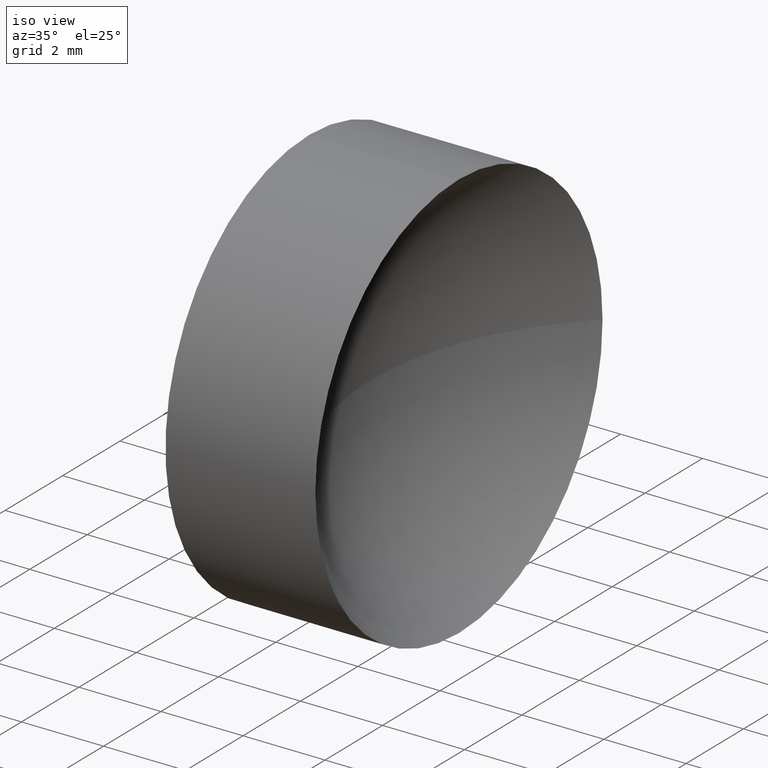
[diagram: clean part render]
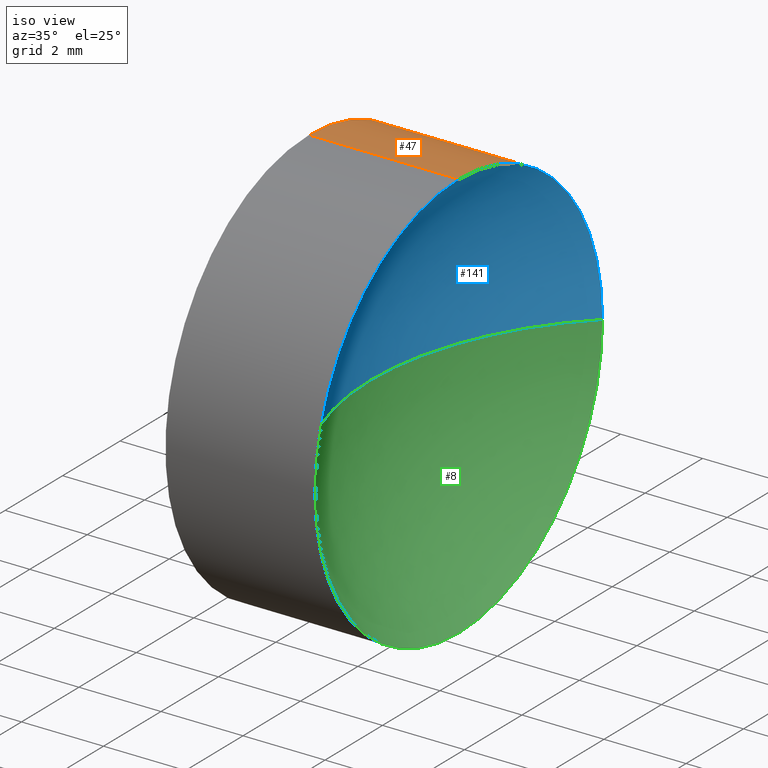
[diagram: same view with three faces highlighted in distinct colors, each labeled with its STEP entity id]
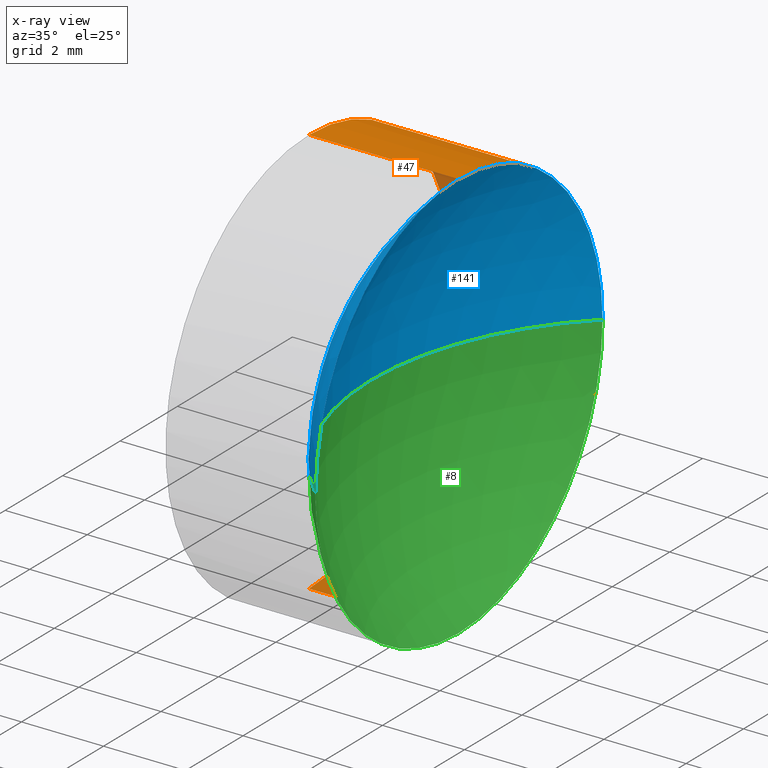
[diagram: x-ray of the same camera — body ghosted, the three highlighted faces saturated]
A machine part, iso view with three faces highlighted in distinct colors.
The next image is the same camera in x-ray (body ghosted, the three faces saturated) — at least one of them is partly hidden behind the body in this view.
Their STEP definitions:

[orange] entity #47 — the highlighted cylindrical surface (partial cylindrical patch) has radius 5 mm, axis along (-1, -0, -0).
#1 = CIRCLE ( 'NONE', #100, 4.999999999999997300 ) ;
#4 = EDGE_CURVE ( 'NONE', #163, #142, #1, .T. ) ;
#6 = CARTESIAN_POINT ( 'NONE',  ( 41.36582732549757700, 26.06225218280608000, -4.999999999999997300 ) ) ;
#9 = ORIENTED_EDGE ( 'NONE', *, *, #165, .F. ) ;
#12 = ORIENTED_EDGE ( 'NONE', *, *, #131, .T. ) ;
#19 = DIRECTION ( 'NONE',  ( 0.0000000000000000000, 0.0000000000000000000, 1.000000000000000000 ) ) ;
#21 = DIRECTION ( 'NONE',  ( 0.0000000000000000000, 0.0000000000000000000, 1.000000000000000000 ) ) ;
#28 = CYLINDRICAL_SURFACE ( 'NONE', #132, 4.999999999999997300 ) ;
#29 = EDGE_CURVE ( 'NONE', #142, #53, #170, .T. ) ;
#30 = ORIENTED_EDGE ( 'NONE', *, *, #29, .T. ) ;
#32 = DIRECTION ( 'NONE',  ( -1.000000000000000000, -0.0000000000000000000, -0.0000000000000000000 ) ) ;
#35 = DIRECTION ( 'NONE',  ( -1.000000000000000000, -0.0000000000000000000, -0.0000000000000000000 ) ) ;
#40 = CARTESIAN_POINT ( 'NONE',  ( 45.01989884529392300, 26.06225218280608000, 0.0000000000000000000 ) ) ;
#42 = EDGE_LOOP ( 'NONE', ( #30, #12, #186, #9, #99 ) ) ;
#45 = CARTESIAN_POINT ( 'NONE',  ( 39.73650001336414300, 26.06225218280608000, -4.999999999999997300 ) ) ;
#46 = DIRECTION ( 'NONE',  ( -1.000000000000000000, -0.0000000000000000000, -0.0000000000000000000 ) ) ;
#47 = ADVANCED_FACE ( 'NONE', ( #144 ), #28, .T. ) ;
#53 = VERTEX_POINT ( 'NONE', #169 ) ;
#54 = DIRECTION ( 'NONE',  ( 0.0000000000000000000, 0.0000000000000000000, 1.000000000000000000 ) ) ;
#62 = CARTESIAN_POINT ( 'NONE',  ( 45.01989884529392300, 31.06225218280608000, 6.123233995736761400E-016 ) ) ;
#88 = VERTEX_POINT ( 'NONE', #173 ) ;
#89 = EDGE_CURVE ( 'NONE', #88, #136, #164, .T. ) ;
#90 = DIRECTION ( 'NONE',  ( 0.0000000000000000000, 0.0000000000000000000, 1.000000000000000000 ) ) ;
#95 = CARTESIAN_POINT ( 'NONE',  ( 45.01989884529392300, 26.06225218280608000, 4.999999999999997300 ) ) ;
#99 = ORIENTED_EDGE ( 'NONE', *, *, #4, .T. ) ;
#100 = AXIS2_PLACEMENT_3D ( 'NONE', #40, #149, #54 ) ;
#102 = LINE ( 'NONE', #114, #118 ) ;
#106 = CARTESIAN_POINT ( 'NONE',  ( 41.36582732549757700, 26.06225218280608000, 0.0000000000000000000 ) ) ;
#114 = CARTESIAN_POINT ( 'NONE',  ( 39.73650001336414300, 26.06225218280608000, 4.999999999999997300 ) ) ;
#116 = LINE ( 'NONE', #45, #171 ) ;
#118 = VECTOR ( 'NONE', #35, 1000.000000000000000 ) ;
#128 = AXIS2_PLACEMENT_3D ( 'NONE', #153, #46, #90 ) ;
#131 = EDGE_CURVE ( 'NONE', #53, #136, #116, .T. ) ;
#132 = AXIS2_PLACEMENT_3D ( 'NONE', #166, #133, #19 ) ;
#133 = DIRECTION ( 'NONE',  ( -1.000000000000000000, -0.0000000000000000000, -0.0000000000000000000 ) ) ;
#136 = VERTEX_POINT ( 'NONE', #6 ) ;
#142 = VERTEX_POINT ( 'NONE', #62 ) ;
#144 = FACE_OUTER_BOUND ( 'NONE', #42, .T. ) ;
#149 = DIRECTION ( 'NONE',  ( -1.000000000000000000, -0.0000000000000000000, -0.0000000000000000000 ) ) ;
#153 = CARTESIAN_POINT ( 'NONE',  ( 45.01989884529392300, 26.06225218280608000, 0.0000000000000000000 ) ) ;
#157 = AXIS2_PLACEMENT_3D ( 'NONE', #106, #32, #21 ) ;
#158 = DIRECTION ( 'NONE',  ( -1.000000000000000000, -0.0000000000000000000, -0.0000000000000000000 ) ) ;
#163 = VERTEX_POINT ( 'NONE', #95 ) ;
#164 = CIRCLE ( 'NONE', #157, 4.999999999999997300 ) ;
#165 = EDGE_CURVE ( 'NONE', #163, #88, #102, .T. ) ;
#166 = CARTESIAN_POINT ( 'NONE',  ( 39.73650001336414300, 26.06225218280608000, 0.0000000000000000000 ) ) ;
#169 = CARTESIAN_POINT ( 'NONE',  ( 45.01989884529392300, 26.06225218280608000, -4.999999999999997300 ) ) ;
#170 = CIRCLE ( 'NONE', #128, 4.999999999999997300 ) ;
#171 = VECTOR ( 'NONE', #158, 1000.000000000000000 ) ;
#173 = CARTESIAN_POINT ( 'NONE',  ( 41.36582732549757700, 26.06225218280608000, 4.999999999999997300 ) ) ;
#186 = ORIENTED_EDGE ( 'NONE', *, *, #89, .F. ) ;

[blue] entity #141 — the highlighted spherical surface has radius 6.88 mm.
#1 = CIRCLE ( 'NONE', #100, 4.999999999999997300 ) ;
#4 = EDGE_CURVE ( 'NONE', #163, #142, #1, .T. ) ;
#5 = DIRECTION ( 'NONE',  ( 0.0000000000000000000, -1.224646799147353200E-016, 1.000000000000000000 ) ) ;
#18 = FACE_OUTER_BOUND ( 'NONE', #74, .T. ) ;
#22 = CARTESIAN_POINT ( 'NONE',  ( 45.01989884529392300, 21.06225218280608800, 0.0000000000000000000 ) ) ;
#24 = ORIENTED_EDGE ( 'NONE', *, *, #86, .T. ) ;
#34 = CIRCLE ( 'NONE', #57, 6.879999999999997200 ) ;
#40 = CARTESIAN_POINT ( 'NONE',  ( 45.01989884529392300, 26.06225218280608000, 0.0000000000000000000 ) ) ;
#48 = DIRECTION ( 'NONE',  ( -1.000000000000000000, -0.0000000000000000000, -0.0000000000000000000 ) ) ;
#54 = DIRECTION ( 'NONE',  ( 0.0000000000000000000, 0.0000000000000000000, 1.000000000000000000 ) ) ;
#56 = CARTESIAN_POINT ( 'NONE',  ( 49.74582732549756500, 26.06225218280608400, 0.0000000000000000000 ) ) ;
#57 = AXIS2_PLACEMENT_3D ( 'NONE', #123, #172, #152 ) ;
#62 = CARTESIAN_POINT ( 'NONE',  ( 45.01989884529392300, 31.06225218280608000, 6.123233995736761400E-016 ) ) ;
#66 = AXIS2_PLACEMENT_3D ( 'NONE', #56, #5, #77 ) ;
#70 = VERTEX_POINT ( 'NONE', #79 ) ;
#71 = EDGE_CURVE ( 'NONE', #142, #70, #150, .T. ) ;
#74 = EDGE_LOOP ( 'NONE', ( #83, #151, #179, #24 ) ) ;
#76 = SPHERICAL_SURFACE ( 'NONE', #112, 6.879999999999993700 ) ;
#77 = DIRECTION ( 'NONE',  ( 0.0000000000000000000, -1.000000000000000000, -1.224646799147353200E-016 ) ) ;
#78 = DIRECTION ( 'NONE',  ( 0.0000000000000000000, 0.0000000000000000000, 1.000000000000000000 ) ) ;
#79 = CARTESIAN_POINT ( 'NONE',  ( 42.86582732549757000, 26.06225218280608400, 0.0000000000000000000 ) ) ;
#83 = ORIENTED_EDGE ( 'NONE', *, *, #71, .F. ) ;
#86 = EDGE_CURVE ( 'NONE', #137, #70, #34, .T. ) ;
#87 = EDGE_CURVE ( 'NONE', #137, #163, #117, .T. ) ;
#93 = CARTESIAN_POINT ( 'NONE',  ( 49.74582732549756500, 26.06225218280608400, 0.0000000000000000000 ) ) ;
#95 = CARTESIAN_POINT ( 'NONE',  ( 45.01989884529392300, 26.06225218280608000, 4.999999999999997300 ) ) ;
#100 = AXIS2_PLACEMENT_3D ( 'NONE', #40, #149, #54 ) ;
#112 = AXIS2_PLACEMENT_3D ( 'NONE', #93, #120, #135 ) ;
#117 = CIRCLE ( 'NONE', #145, 4.999999999999997300 ) ;
#120 = DIRECTION ( 'NONE',  ( 0.0000000000000000000, 0.0000000000000000000, 1.000000000000000000 ) ) ;
#123 = CARTESIAN_POINT ( 'NONE',  ( 49.74582732549756500, 26.06225218280608400, 0.0000000000000000000 ) ) ;
#135 = DIRECTION ( 'NONE',  ( 0.0000000000000000000, -1.000000000000000000, 0.0000000000000000000 ) ) ;
#137 = VERTEX_POINT ( 'NONE', #22 ) ;
#141 = ADVANCED_FACE ( 'NONE', ( #18 ), #76, .F. ) ;
#142 = VERTEX_POINT ( 'NONE', #62 ) ;
#145 = AXIS2_PLACEMENT_3D ( 'NONE', #181, #48, #78 ) ;
#149 = DIRECTION ( 'NONE',  ( -1.000000000000000000, -0.0000000000000000000, -0.0000000000000000000 ) ) ;
#150 = CIRCLE ( 'NONE', #66, 6.879999999999993700 ) ;
#151 = ORIENTED_EDGE ( 'NONE', *, *, #4, .F. ) ;
#152 = DIRECTION ( 'NONE',  ( -1.000000000000000000, 0.0000000000000000000, 0.0000000000000000000 ) ) ;
#163 = VERTEX_POINT ( 'NONE', #95 ) ;
#172 = DIRECTION ( 'NONE',  ( 0.0000000000000000000, 0.0000000000000000000, -1.000000000000000000 ) ) ;
#179 = ORIENTED_EDGE ( 'NONE', *, *, #87, .F. ) ;
#181 = CARTESIAN_POINT ( 'NONE',  ( 45.01989884529392300, 26.06225218280608000, 0.0000000000000000000 ) ) ;

[green] entity #8 — the highlighted spherical surface has radius 6.88 mm.
#5 = DIRECTION ( 'NONE',  ( 0.0000000000000000000, -1.224646799147353200E-016, 1.000000000000000000 ) ) ;
#8 = ADVANCED_FACE ( 'NONE', ( #122 ), #75, .F. ) ;
#15 = EDGE_CURVE ( 'NONE', #53, #137, #97, .T. ) ;
#22 = CARTESIAN_POINT ( 'NONE',  ( 45.01989884529392300, 21.06225218280608800, 0.0000000000000000000 ) ) ;
#23 = EDGE_LOOP ( 'NONE', ( #134, #147, #183, #178 ) ) ;
#27 = DIRECTION ( 'NONE',  ( 0.0000000000000000000, -1.000000000000000000, 0.0000000000000000000 ) ) ;
#29 = EDGE_CURVE ( 'NONE', #142, #53, #170, .T. ) ;
#34 = CIRCLE ( 'NONE', #57, 6.879999999999997200 ) ;
#38 = AXIS2_PLACEMENT_3D ( 'NONE', #105, #156, #44 ) ;
#41 = DIRECTION ( 'NONE',  ( 0.0000000000000000000, 0.0000000000000000000, 1.000000000000000000 ) ) ;
#43 = AXIS2_PLACEMENT_3D ( 'NONE', #55, #41, #27 ) ;
#44 = DIRECTION ( 'NONE',  ( 0.0000000000000000000, 0.0000000000000000000, 1.000000000000000000 ) ) ;
#46 = DIRECTION ( 'NONE',  ( -1.000000000000000000, -0.0000000000000000000, -0.0000000000000000000 ) ) ;
#53 = VERTEX_POINT ( 'NONE', #169 ) ;
#55 = CARTESIAN_POINT ( 'NONE',  ( 49.74582732549756500, 26.06225218280608400, 0.0000000000000000000 ) ) ;
#56 = CARTESIAN_POINT ( 'NONE',  ( 49.74582732549756500, 26.06225218280608400, 0.0000000000000000000 ) ) ;
#57 = AXIS2_PLACEMENT_3D ( 'NONE', #123, #172, #152 ) ;
#62 = CARTESIAN_POINT ( 'NONE',  ( 45.01989884529392300, 31.06225218280608000, 6.123233995736761400E-016 ) ) ;
#66 = AXIS2_PLACEMENT_3D ( 'NONE', #56, #5, #77 ) ;
#70 = VERTEX_POINT ( 'NONE', #79 ) ;
#71 = EDGE_CURVE ( 'NONE', #142, #70, #150, .T. ) ;
#75 = SPHERICAL_SURFACE ( 'NONE', #43, 6.879999999999993700 ) ;
#77 = DIRECTION ( 'NONE',  ( 0.0000000000000000000, -1.000000000000000000, -1.224646799147353200E-016 ) ) ;
#79 = CARTESIAN_POINT ( 'NONE',  ( 42.86582732549757000, 26.06225218280608400, 0.0000000000000000000 ) ) ;
#86 = EDGE_CURVE ( 'NONE', #137, #70, #34, .T. ) ;
#90 = DIRECTION ( 'NONE',  ( 0.0000000000000000000, 0.0000000000000000000, 1.000000000000000000 ) ) ;
#97 = CIRCLE ( 'NONE', #38, 4.999999999999997300 ) ;
#105 = CARTESIAN_POINT ( 'NONE',  ( 45.01989884529392300, 26.06225218280608000, 0.0000000000000000000 ) ) ;
#122 = FACE_OUTER_BOUND ( 'NONE', #23, .T. ) ;
#123 = CARTESIAN_POINT ( 'NONE',  ( 49.74582732549756500, 26.06225218280608400, 0.0000000000000000000 ) ) ;
#128 = AXIS2_PLACEMENT_3D ( 'NONE', #153, #46, #90 ) ;
#134 = ORIENTED_EDGE ( 'NONE', *, *, #29, .F. ) ;
#137 = VERTEX_POINT ( 'NONE', #22 ) ;
#142 = VERTEX_POINT ( 'NONE', #62 ) ;
#147 = ORIENTED_EDGE ( 'NONE', *, *, #71, .T. ) ;
#150 = CIRCLE ( 'NONE', #66, 6.879999999999993700 ) ;
#152 = DIRECTION ( 'NONE',  ( -1.000000000000000000, 0.0000000000000000000, 0.0000000000000000000 ) ) ;
#153 = CARTESIAN_POINT ( 'NONE',  ( 45.01989884529392300, 26.06225218280608000, 0.0000000000000000000 ) ) ;
#156 = DIRECTION ( 'NONE',  ( -1.000000000000000000, -0.0000000000000000000, -0.0000000000000000000 ) ) ;
#169 = CARTESIAN_POINT ( 'NONE',  ( 45.01989884529392300, 26.06225218280608000, -4.999999999999997300 ) ) ;
#170 = CIRCLE ( 'NONE', #128, 4.999999999999997300 ) ;
#172 = DIRECTION ( 'NONE',  ( 0.0000000000000000000, 0.0000000000000000000, -1.000000000000000000 ) ) ;
#178 = ORIENTED_EDGE ( 'NONE', *, *, #15, .F. ) ;
#183 = ORIENTED_EDGE ( 'NONE', *, *, #86, .F. ) ;